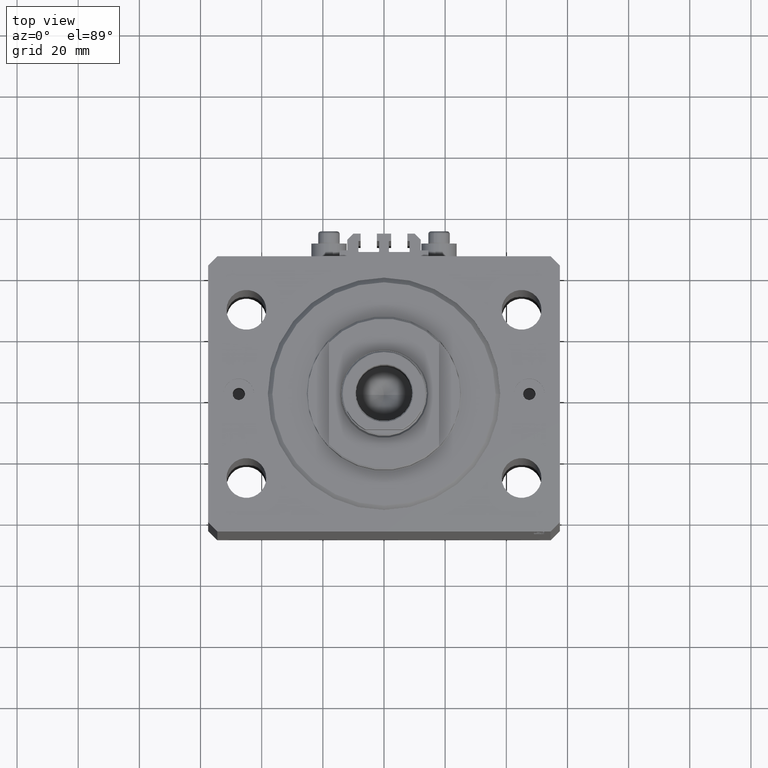
[diagram: clean part render]
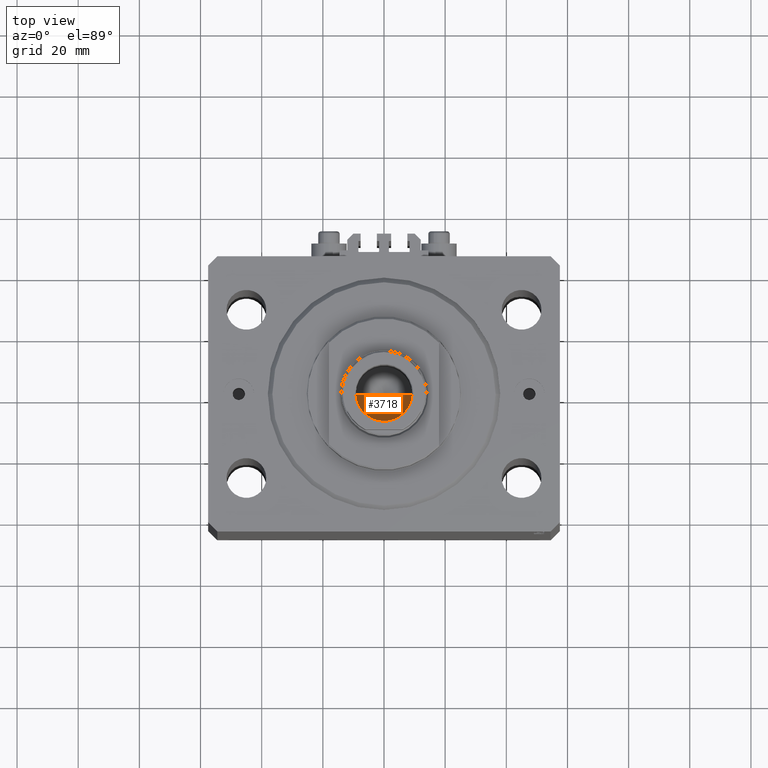
[diagram: same view with one face highlighted and labeled with its STEP entity id]
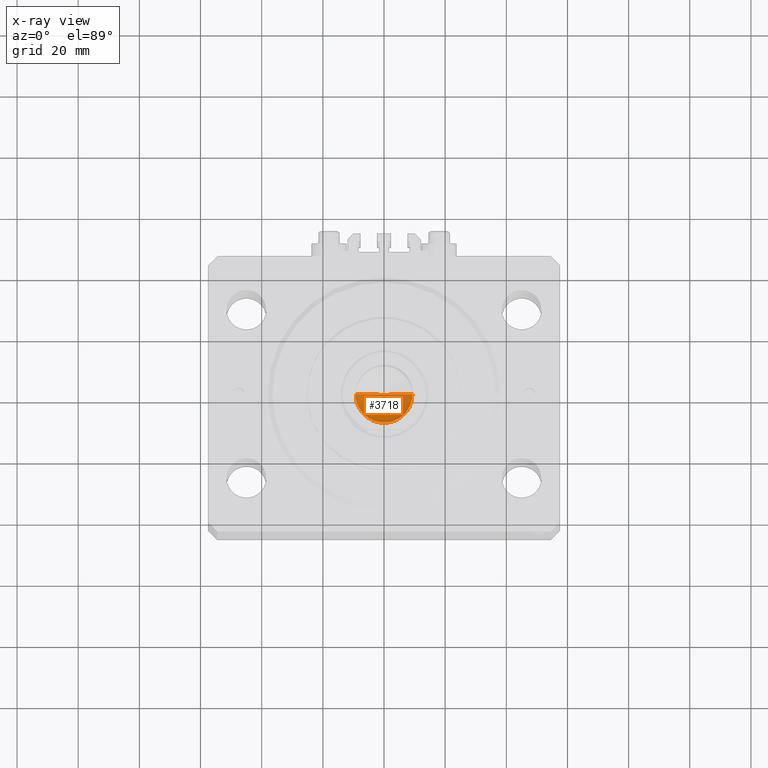
[diagram: x-ray of the same camera — body ghosted, the highlighted face saturated]
A machine part, top view. The second image highlights one B-rep face of the part: STEP entity #3718.
The next image is the same camera in x-ray: the body ghosted, the highlighted face saturated — about 8% of this face is hidden behind the body in this view.
In plain terms, the highlighted conical surface has half-angle 59 deg.
Its self-contained STEP definition (entity closure, byte-faithful):
#484 = CARTESIAN_POINT ( 'NONE',  ( 0.000000000000000000, 0.000000000000000000, 132.0000000000000000 ) ) ;
#774 = LINE ( 'NONE', #37270, #40932 ) ;
#1525 = EDGE_CURVE ( 'NONE', #34584, #39136, #42345, .T. ) ;
#3406 = DIRECTION ( 'NONE',  ( -0.8571673007021112234, 1.049727191138617340E-16, 0.5150380749100560429 ) ) ;
#3718 = ADVANCED_FACE ( 'NONE', ( #20217 ), #46994, .F. ) ;
#7717 = CARTESIAN_POINT ( 'NONE',  ( -9.249999999999994671, 1.132798289211300909E-15, 132.0000000000000000 ) ) ;
#8142 = DIRECTION ( 'NONE',  ( 0.8571673007021112234, 0.000000000000000000, 0.5150380749100560429 ) ) ;
#9513 = EDGE_CURVE ( 'NONE', #29403, #39136, #774, .T. ) ;
#9865 = CARTESIAN_POINT ( 'NONE',  ( -1.046994375366439223E-14, 0.000000000000000000, 126.4420392739950501 ) ) ;
#13040 = DIRECTION ( 'NONE',  ( -0.000000000000000000, -0.000000000000000000, 1.000000000000000000 ) ) ;
#14438 = VECTOR ( 'NONE', #3406, 1000.000000000000000 ) ;
#18122 = DIRECTION ( 'NONE',  ( 1.000000000000000000, 0.000000000000000000, 0.000000000000000000 ) ) ;
#19414 = AXIS2_PLACEMENT_3D ( 'NONE', #484, #22396, #18122 ) ;
#20217 = FACE_OUTER_BOUND ( 'NONE', #26615, .T. ) ;
#22396 = DIRECTION ( 'NONE',  ( -0.000000000000000000, -0.000000000000000000, 1.000000000000000000 ) ) ;
#22638 = ORIENTED_EDGE ( 'NONE', *, *, #1525, .T. ) ;
#26615 = EDGE_LOOP ( 'NONE', ( #42773, #35232, #22638 ) ) ;
#29403 = VERTEX_POINT ( 'NONE', #9865 ) ;
#31686 = CARTESIAN_POINT ( 'NONE',  ( 0.000000000000000000, 0.000000000000000000, 132.0000000000000000 ) ) ;
#32754 = LINE ( 'NONE', #46885, #14438 ) ;
#34584 = VERTEX_POINT ( 'NONE', #7717 ) ;
#35232 = ORIENTED_EDGE ( 'NONE', *, *, #36483, .T. ) ;
#36483 = EDGE_CURVE ( 'NONE', #29403, #34584, #32754, .T. ) ;
#37270 = CARTESIAN_POINT ( 'NONE',  ( 9.249999999999994671, 0.000000000000000000, 132.0000000000000000 ) ) ;
#38617 = DIRECTION ( 'NONE',  ( 1.000000000000000000, 0.000000000000000000, 0.000000000000000000 ) ) ;
#39136 = VERTEX_POINT ( 'NONE', #43362 ) ;
#40932 = VECTOR ( 'NONE', #8142, 1000.000000000000000 ) ;
#42345 = CIRCLE ( 'NONE', #19414, 9.249999999999994671 ) ;
#42773 = ORIENTED_EDGE ( 'NONE', *, *, #9513, .F. ) ;
#43362 = CARTESIAN_POINT ( 'NONE',  ( 9.249999999999994671, 0.000000000000000000, 132.0000000000000000 ) ) ;
#46241 = AXIS2_PLACEMENT_3D ( 'NONE', #31686, #13040, #38617 ) ;
#46885 = CARTESIAN_POINT ( 'NONE',  ( -9.249999999999994671, 1.132798289211300909E-15, 132.0000000000000000 ) ) ;
#46994 = CONICAL_SURFACE ( 'NONE', #46241, 9.249999999999994671, 1.029744258676652313 ) ;